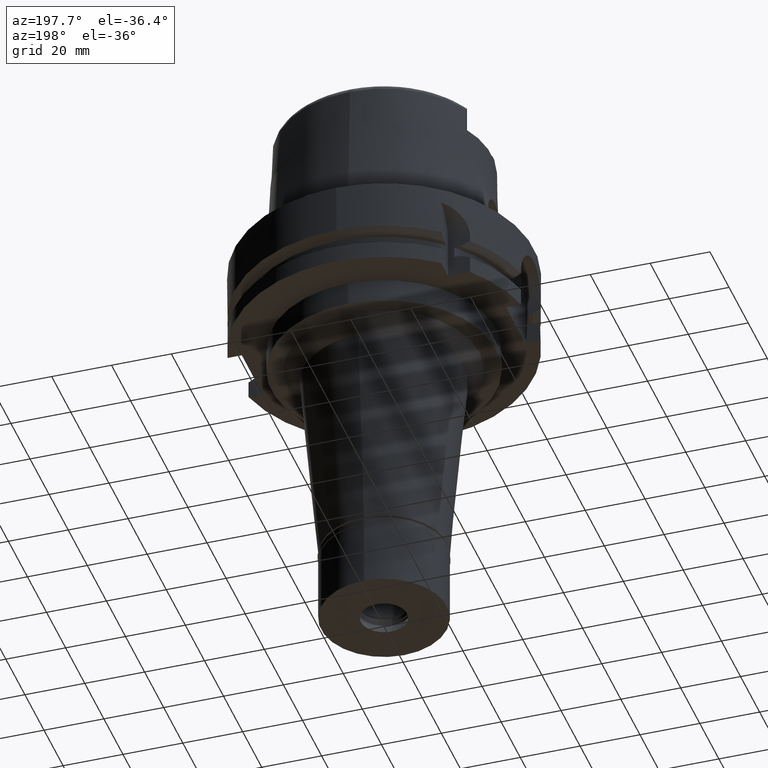
[diagram: clean part render]
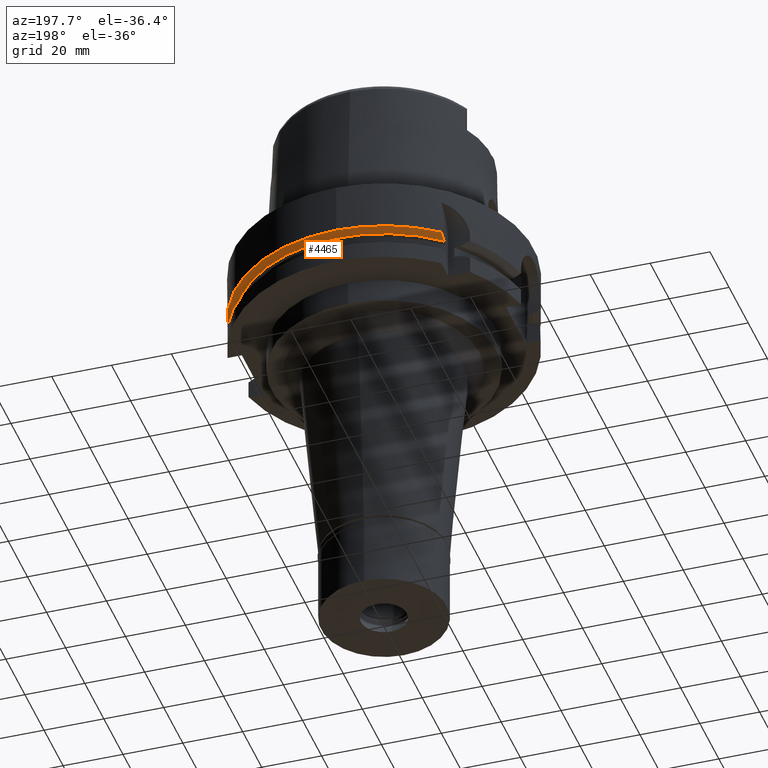
[diagram: same view with one face highlighted and labeled with its STEP entity id]
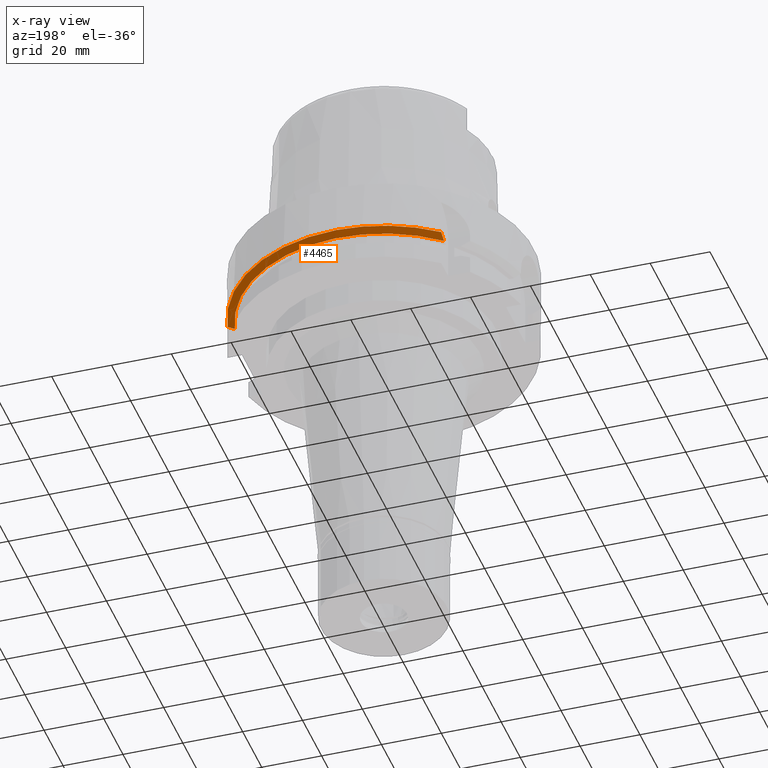
[diagram: x-ray of the same camera — body ghosted, the highlighted face saturated]
A machine part, auxiliary view. The second image highlights one B-rep face of the part: STEP entity #4465.
The next image is the same camera in x-ray: the body ghosted, the highlighted face saturated — about 0% of this face is hidden behind the body in this view.
In plain terms, the highlighted conical surface has half-angle 60 deg.
Its self-contained STEP definition (entity closure, byte-faithful):
#100 = EDGE_CURVE ( 'NONE', #2196, #5205, #1302, .T. ) ;
#125 = AXIS2_PLACEMENT_3D ( 'NONE', #2529, #1715, #5552 ) ;
#151 = CARTESIAN_POINT ( 'NONE',  ( -31.50000355958999876, 38.82975374304999860, -16.75239179145000179 ) ) ;
#318 = CARTESIAN_POINT ( 'NONE',  ( 46.33477721644000269, 11.00000000000000000, -18.12500000000000000 ) ) ;
#534 = CARTESIAN_POINT ( 'NONE',  ( -31.50000097280999967, 35.71639618471999711, -18.12500000000000000 ) ) ;
#673 = CARTESIAN_POINT ( 'NONE',  ( 48.77499359303000404, 11.00000000000000000, -16.75240473580999989 ) ) ;
#727 = ORIENTED_EDGE ( 'NONE', *, *, #4350, .F. ) ;
#763 = AXIS2_PLACEMENT_3D ( 'NONE', #5589, #4214, #4180 ) ;
#897 = CARTESIAN_POINT ( 'NONE',  ( 46.33477721644000269, 11.00000000000000000, -18.12500000000000000 ) ) ;
#943 = EDGE_CURVE ( 'NONE', #2196, #5384, #4737, .T. ) ;
#1179 = DIRECTION ( 'NONE',  ( 0.0000000000000000000, 1.000000000000000000, 0.0000000000000000000 ) ) ;
#1302 = B_SPLINE_CURVE_WITH_KNOTS ( 'NONE', 3,
 ( #318, #2438, #2827, #1491, #1967, #673 ),
 .UNSPECIFIED., .F., .F.,
 ( 4, 1, 1, 4 ),
 ( 0.0000000000000000000, 0.3333333333333000081, 0.6666666666667000474, 1.000000000000000000 ),
 .UNSPECIFIED. ) ;
#1371 = CARTESIAN_POINT ( 'NONE',  ( 0.0000000000000000000, 50.00000000000000000, -16.75240473580999989 ) ) ;
#1380 = AXIS2_PLACEMENT_3D ( 'NONE', #1541, #3235, #1179 ) ;
#1421 = B_SPLINE_CURVE_WITH_KNOTS ( 'NONE', 3,
 ( #534, #3154, #3979, #151 ),
 .UNSPECIFIED., .F., .F.,
 ( 4, 4 ),
 ( 0.0000000000000000000, 1.000000000000000000 ),
 .UNSPECIFIED. ) ;
#1438 = ORIENTED_EDGE ( 'NONE', *, *, #4213, .F. ) ;
#1457 = EDGE_CURVE ( 'NONE', #5384, #4018, #1421, .T. ) ;
#1491 = CARTESIAN_POINT ( 'NONE',  ( 47.96191616323000062, 11.00000000000000000, -17.21020456769999996 ) ) ;
#1541 = CARTESIAN_POINT ( 'NONE',  ( 0.0000000000000000000, 0.0000000000000000000, -16.75240473580999989 ) ) ;
#1595 = CARTESIAN_POINT ( 'NONE',  ( 48.77499359303000404, 11.00000000000000000, -16.75240473580999989 ) ) ;
#1622 = FACE_OUTER_BOUND ( 'NONE', #1891, .T. ) ;
#1715 = DIRECTION ( 'NONE',  ( 0.0000000000000000000, 0.0000000000000000000, 1.000000000000000000 ) ) ;
#1730 = CARTESIAN_POINT ( 'NONE',  ( -31.50000097280999967, 35.71639618471999711, -18.12500000000000000 ) ) ;
#1890 = CARTESIAN_POINT ( 'NONE',  ( -31.50000355958999876, 38.82975374304999860, -16.75239179145000179 ) ) ;
#1891 = EDGE_LOOP ( 'NONE', ( #1438, #727, #1910, #4021, #2778 ) ) ;
#1910 = ORIENTED_EDGE ( 'NONE', *, *, #100, .F. ) ;
#1967 = CARTESIAN_POINT ( 'NONE',  ( 48.50399904748000068, 11.00000000000000000, -16.90503024962000111 ) ) ;
#2196 = VERTEX_POINT ( 'NONE', #897 ) ;
#2435 = DIRECTION ( 'NONE',  ( 0.0000000000000000000, 1.000000000000000000, 0.0000000000000000000 ) ) ;
#2438 = CARTESIAN_POINT ( 'NONE',  ( 46.60605711264999940, 11.00000000000000000, -17.97261191788999923 ) ) ;
#2529 = CARTESIAN_POINT ( 'NONE',  ( 0.0000000000000000000, 0.0000000000000000000, -16.75240473580999989 ) ) ;
#2709 = AXIS2_PLACEMENT_3D ( 'NONE', #4602, #4976, #2435 ) ;
#2778 = ORIENTED_EDGE ( 'NONE', *, *, #1457, .T. ) ;
#2827 = CARTESIAN_POINT ( 'NONE',  ( 47.14851446811000102, 11.00000000000000000, -17.66774350266999960 ) ) ;
#3154 = CARTESIAN_POINT ( 'NONE',  ( -31.50000195460757979, 36.73337253298934257, -17.68464608511978042 ) ) ;
#3235 = DIRECTION ( 'NONE',  ( 0.0000000000000000000, 0.0000000000000000000, 1.000000000000000000 ) ) ;
#3366 = CIRCLE ( 'NONE', #125, 50.00000000000000711 ) ;
#3979 = CARTESIAN_POINT ( 'NONE',  ( -31.50000711004718212, 37.77100375014965294, -17.22711240004090172 ) ) ;
#4018 = VERTEX_POINT ( 'NONE', #1890 ) ;
#4021 = ORIENTED_EDGE ( 'NONE', *, *, #943, .T. ) ;
#4180 = DIRECTION ( 'NONE',  ( 0.9729578356532629924, 0.2309827916553914839, 0.0000000000000000000 ) ) ;
#4213 = EDGE_CURVE ( 'NONE', #4613, #4018, #5092, .T. ) ;
#4214 = DIRECTION ( 'NONE',  ( 0.0000000000000000000, 0.0000000000000000000, 1.000000000000000000 ) ) ;
#4350 = EDGE_CURVE ( 'NONE', #5205, #4613, #3366, .T. ) ;
#4465 = ADVANCED_FACE ( 'NONE', ( #1622 ), #5362, .T. ) ;
#4602 = CARTESIAN_POINT ( 'NONE',  ( 0.0000000000000000000, 0.0000000000000000000, -17.43870236789999950 ) ) ;
#4613 = VERTEX_POINT ( 'NONE', #1371 ) ;
#4737 = CIRCLE ( 'NONE', #763, 47.62259526418999656 ) ;
#4976 = DIRECTION ( 'NONE',  ( 0.0000000000000000000, 0.0000000000000000000, 1.000000000000000000 ) ) ;
#5092 = CIRCLE ( 'NONE', #1380, 50.00000000000000000 ) ;
#5205 = VERTEX_POINT ( 'NONE', #1595 ) ;
#5362 = CONICAL_SURFACE ( 'NONE', #2709, 48.81129763208999606, 1.047197551196400456 ) ;
#5384 = VERTEX_POINT ( 'NONE', #1730 ) ;
#5552 = DIRECTION ( 'NONE',  ( 0.9754998718605770724, 0.2199999999999950051, 0.0000000000000000000 ) ) ;
#5589 = CARTESIAN_POINT ( 'NONE',  ( 0.0000000000000000000, 0.0000000000000000000, -18.12500000000000000 ) ) ;